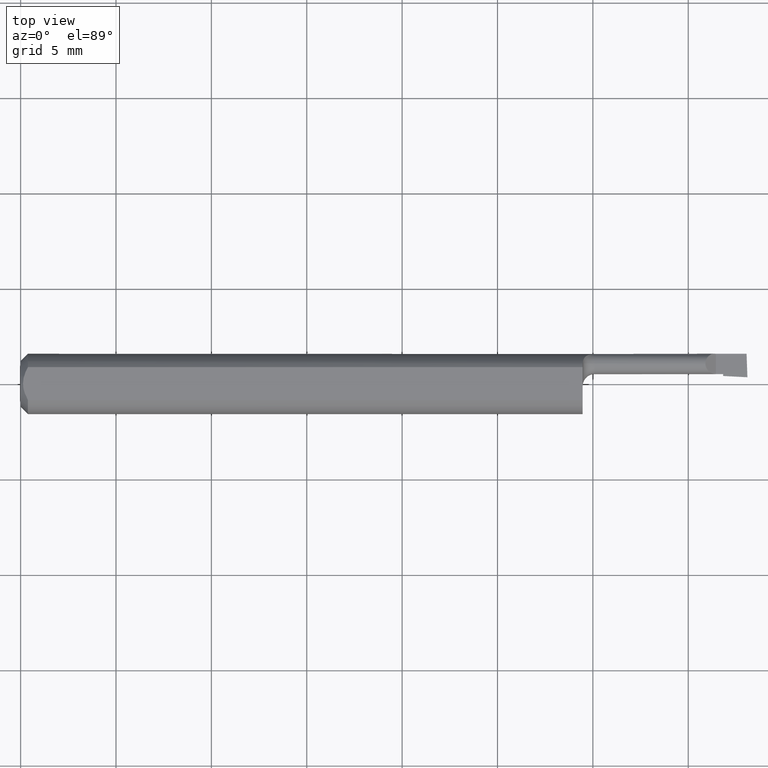
[diagram: clean part render]
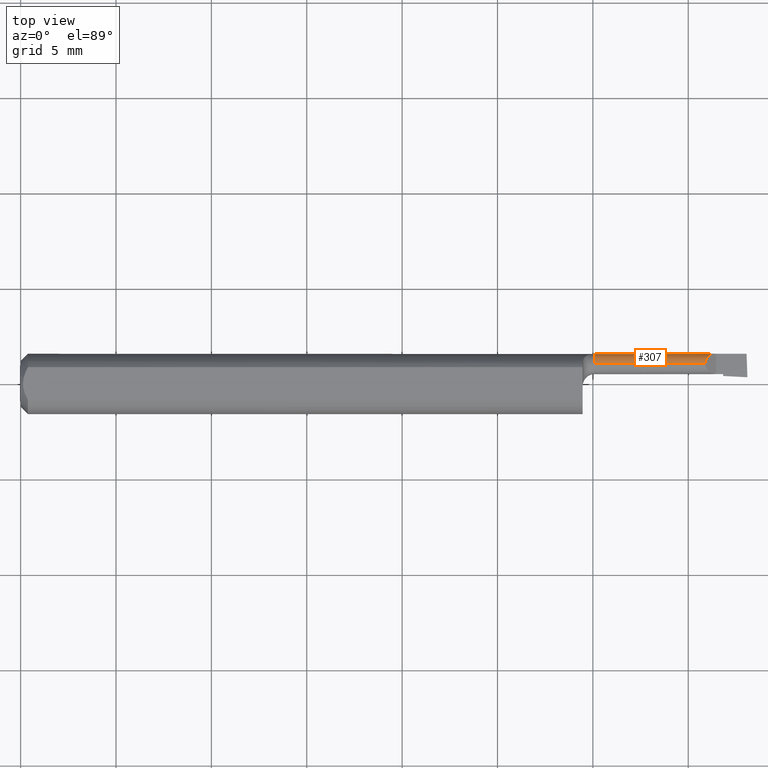
[diagram: same view with one face highlighted and labeled with its STEP entity id]
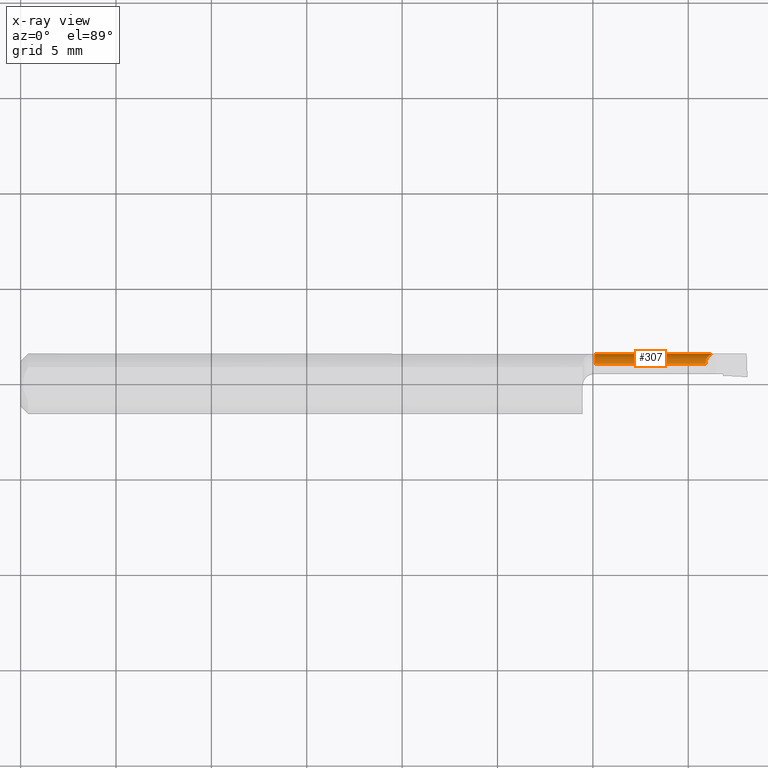
[diagram: x-ray of the same camera — body ghosted, the highlighted face saturated]
A machine part, top view. The second image highlights one B-rep face of the part: STEP entity #307.
The next image is the same camera in x-ray: the body ghosted, the highlighted face saturated — about 0% of this face is hidden behind the body in this view.
In plain terms, the highlighted cylindrical surface (edge-blend (fillet) strip) has radius 0.5499 mm, axis along (-1, -0, -0).
Its self-contained STEP definition (entity closure, byte-faithful):
#45 = CARTESIAN_POINT ( 'NONE',  ( 1.413349999999999662, 0.05073296928954763862, 0.02165000000000002686 ) ) ;
#75 = VERTEX_POINT ( 'NONE', #220 ) ;
#81 = CARTESIAN_POINT ( 'NONE',  ( 0.000000000000000000, 0.04200000000000000955, 0.02165000000000002686 ) ) ;
#87 = CARTESIAN_POINT ( 'NONE',  ( 1.413349999999999884, 0.04200000000000000955, 0.02165000000000002686 ) ) ;
#92 = CARTESIAN_POINT ( 'NONE',  ( 1.418074042879263752, 0.05807791118768803468, 0.01692595712073615907 ) ) ;
#108 = CARTESIAN_POINT ( 'NONE',  ( 1.317500000000000115, 0.06169999999999998402, 0.008979560122856904483 ) ) ;
#110 = CIRCLE ( 'NONE', #308, 0.02165000000000004768 ) ;
#115 = ORIENTED_EDGE ( 'NONE', *, *, #249, .F. ) ;
#141 = ORIENTED_EDGE ( 'NONE', *, *, #339, .F. ) ;
#150 = FACE_OUTER_BOUND ( 'NONE', #264, .T. ) ;
#154 = CARTESIAN_POINT ( 'NONE',  ( 0.000000000000000000, 0.04200000000000000955, 0.000000000000000000 ) ) ;
#198 = AXIS2_PLACEMENT_3D ( 'NONE', #154, #511, #678 ) ;
#220 = CARTESIAN_POINT ( 'NONE',  ( 1.185000000000000275, 0.04200000000000000955, 0.02165000000000004768 ) ) ;
#238 = VERTEX_POINT ( 'NONE', #87 ) ;
#249 = EDGE_CURVE ( 'NONE', #75, #482, #110, .T. ) ;
#264 = EDGE_LOOP ( 'NONE', ( #647, #385, #141, #115 ) ) ;
#287 = DIRECTION ( 'NONE',  ( -1.000000000000000000, -0.000000000000000000, -0.000000000000000000 ) ) ;
#295 =( BOUNDED_CURVE ( )  B_SPLINE_CURVE ( 3, ( #344, #92, #45, #390 ),
 .UNSPECIFIED., .F., .T. ) 
 B_SPLINE_CURVE_WITH_KNOTS ( ( 4, 4 ),
 ( 5.140068321995384437, 6.283185307179586232 ),
 .UNSPECIFIED. ) 
 CURVE ( )  GEOMETRIC_REPRESENTATION_ITEM ( )  RATIONAL_B_SPLINE_CURVE ( ( 1.000000000000000000, 0.8940392936708223548, 0.8940392936708223548, 1.000000000000000000 ) ) 
 REPRESENTATION_ITEM ( '' )  );
#307 = ADVANCED_FACE ( 'NONE', ( #150 ), #357, .T. ) ;
#308 = AXIS2_PLACEMENT_3D ( 'NONE', #441, #347, #496 ) ;
#336 = CARTESIAN_POINT ( 'NONE',  ( 1.426020439877143220, 0.06170000000000000484, 0.008979560122856816012 ) ) ;
#339 = EDGE_CURVE ( 'NONE', #482, #487, #567, .T. ) ;
#344 = CARTESIAN_POINT ( 'NONE',  ( 1.426020439877143220, 0.06170000000000000484, 0.008979560122856816012 ) ) ;
#347 = DIRECTION ( 'NONE',  ( -1.000000000000000000, -0.000000000000000000, -0.000000000000000000 ) ) ;
#357 = CYLINDRICAL_SURFACE ( 'NONE', #198, 0.02165000000000002686 ) ;
#385 = ORIENTED_EDGE ( 'NONE', *, *, #545, .F. ) ;
#390 = CARTESIAN_POINT ( 'NONE',  ( 1.413349999999999884, 0.04200000000000000955, 0.02165000000000002686 ) ) ;
#413 = DIRECTION ( 'NONE',  ( 1.000000000000000000, 0.000000000000000000, 0.000000000000000000 ) ) ;
#441 = CARTESIAN_POINT ( 'NONE',  ( 1.185000000000000275, 0.04200000000000000955, 0.000000000000000000 ) ) ;
#482 = VERTEX_POINT ( 'NONE', #542 ) ;
#487 = VERTEX_POINT ( 'NONE', #336 ) ;
#496 = DIRECTION ( 'NONE',  ( 0.000000000000000000, 0.000000000000000000, 1.000000000000000000 ) ) ;
#502 = VECTOR ( 'NONE', #413, 39.37007874015748143 ) ;
#511 = DIRECTION ( 'NONE',  ( -1.000000000000000000, -0.000000000000000000, -0.000000000000000000 ) ) ;
#542 = CARTESIAN_POINT ( 'NONE',  ( 1.185000000000000275, 0.06169999999999831869, 0.008979560122860611587 ) ) ;
#545 = EDGE_CURVE ( 'NONE', #487, #238, #295, .T. ) ;
#549 = LINE ( 'NONE', #81, #570 ) ;
#563 = EDGE_CURVE ( 'NONE', #238, #75, #549, .T. ) ;
#567 = LINE ( 'NONE', #108, #502 ) ;
#570 = VECTOR ( 'NONE', #287, 39.37007874015748143 ) ;
#647 = ORIENTED_EDGE ( 'NONE', *, *, #563, .F. ) ;
#678 = DIRECTION ( 'NONE',  ( 0.000000000000000000, 0.000000000000000000, 1.000000000000000000 ) ) ;